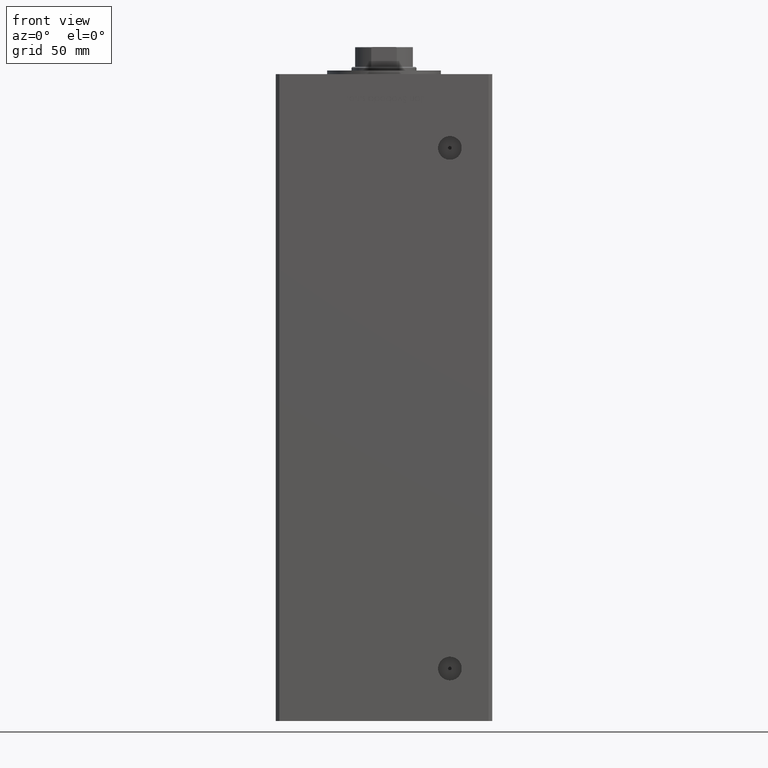
[diagram: clean part render]
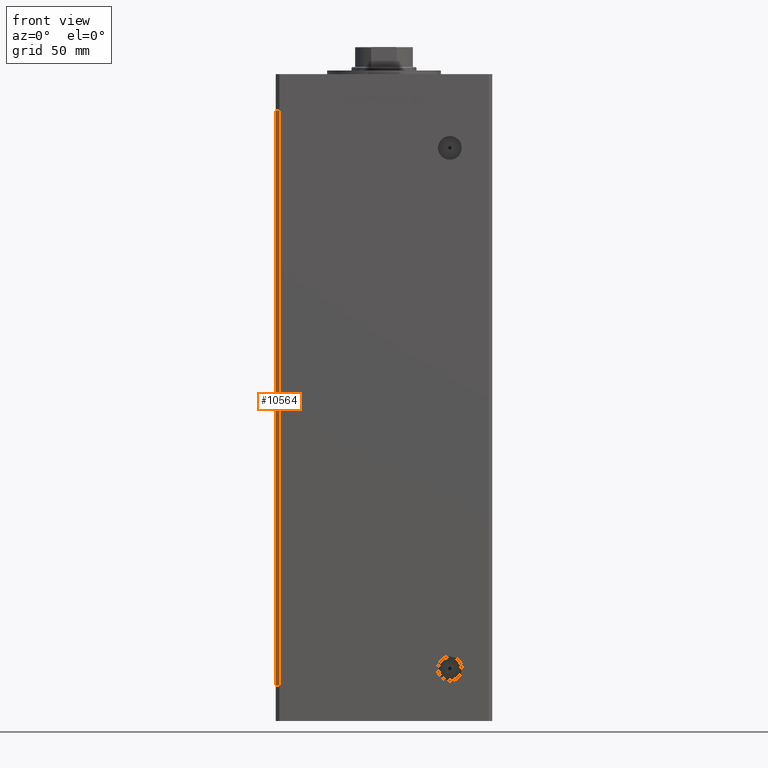
[diagram: same view with one face highlighted and labeled with its STEP entity id]
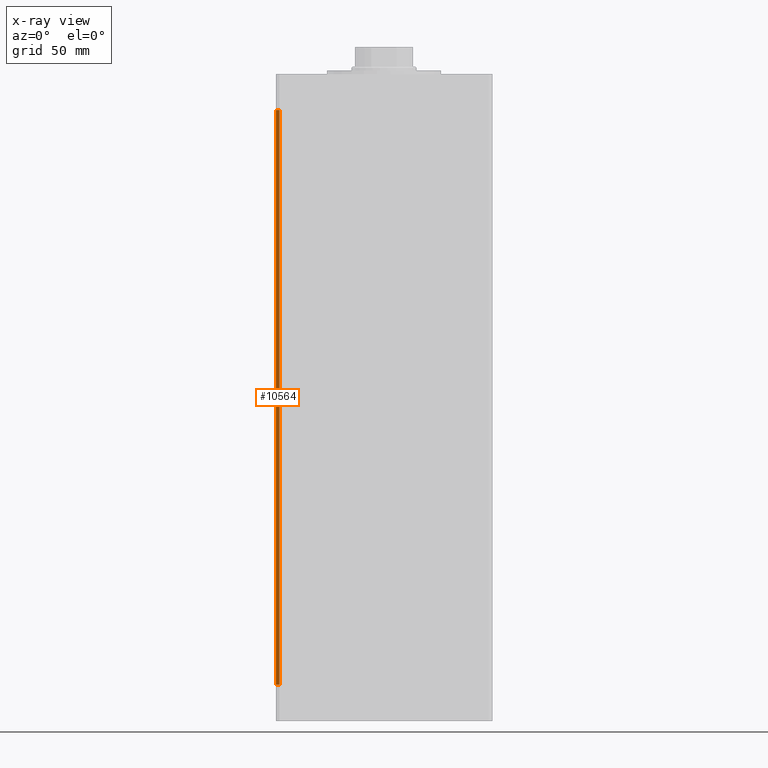
[diagram: x-ray of the same camera — body ghosted, the highlighted face saturated]
A machine part, front view. The second image highlights one B-rep face of the part: STEP entity #10564.
The next image is the same camera in x-ray: the body ghosted, the highlighted face saturated — about 0% of this face is hidden behind the body in this view.
In plain terms, the highlighted planar face has unit normal (0.7071, 0.7071, 0).
Its self-contained STEP definition (entity closure, byte-faithful):
#430 = CARTESIAN_POINT ( 'NONE',  ( -59.99999999999998579, -49.00000000000000000, 318.5000000000000000 ) ) ;
#877 = CARTESIAN_POINT ( 'NONE',  ( -59.99999999999998579, -49.00000000000000000, 318.5000000000000000 ) ) ;
#1568 = CARTESIAN_POINT ( 'NONE',  ( -59.99999999999998579, -49.00000000000000000, 0.000000000000000000 ) ) ;
#1599 = CARTESIAN_POINT ( 'NONE',  ( -57.99999999999997868, -51.00000000000000711, 318.5000000000000000 ) ) ;
#4824 = DIRECTION ( 'NONE',  ( 0.7071067811865474617, -0.7071067811865474617, 0.000000000000000000 ) ) ;
#5152 = FACE_OUTER_BOUND ( 'NONE', #7291, .T. ) ;
#5750 = ORIENTED_EDGE ( 'NONE', *, *, #20685, .F. ) ;
#6093 = VECTOR ( 'NONE', #48209, 1000.000000000000114 ) ;
#7291 = EDGE_LOOP ( 'NONE', ( #16634, #46067, #5750, #39296 ) ) ;
#7905 = CARTESIAN_POINT ( 'NONE',  ( -59.99999999999998579, -49.00000000000000000, 0.000000000000000000 ) ) ;
#9696 = LINE ( 'NONE', #26025, #22889 ) ;
#10564 = ADVANCED_FACE ( 'NONE', ( #5152 ), #25440, .F. ) ;
#11919 = VECTOR ( 'NONE', #4824, 1000.000000000000114 ) ;
#16634 = ORIENTED_EDGE ( 'NONE', *, *, #49258, .T. ) ;
#18076 = VERTEX_POINT ( 'NONE', #50866 ) ;
#18330 = DIRECTION ( 'NONE',  ( 0.7071067811865475727, 0.7071067811865475727, -0.000000000000000000 ) ) ;
#20685 = EDGE_CURVE ( 'NONE', #33854, #46967, #33547, .T. ) ;
#22889 = VECTOR ( 'NONE', #42119, 1000.000000000000000 ) ;
#25440 = PLANE ( 'NONE',  #45314 ) ;
#26025 = CARTESIAN_POINT ( 'NONE',  ( -57.99999999999997868, -51.00000000000000711, 318.5000000000000000 ) ) ;
#26607 = EDGE_CURVE ( 'NONE', #46967, #18076, #9696, .T. ) ;
#29227 = VERTEX_POINT ( 'NONE', #1568 ) ;
#29999 = LINE ( 'NONE', #45558, #44680 ) ;
#32129 = LINE ( 'NONE', #7905, #6093 ) ;
#33351 = CARTESIAN_POINT ( 'NONE',  ( -59.99999999999998579, -49.00000000000000000, 318.5000000000000000 ) ) ;
#33547 = LINE ( 'NONE', #877, #11919 ) ;
#33854 = VERTEX_POINT ( 'NONE', #430 ) ;
#37833 = DIRECTION ( 'NONE',  ( -0.7071067811865474617, 0.7071067811865474617, 0.000000000000000000 ) ) ;
#39296 = ORIENTED_EDGE ( 'NONE', *, *, #44616, .T. ) ;
#42119 = DIRECTION ( 'NONE',  ( -0.000000000000000000, -0.000000000000000000, -1.000000000000000000 ) ) ;
#44616 = EDGE_CURVE ( 'NONE', #33854, #29227, #29999, .T. ) ;
#44680 = VECTOR ( 'NONE', #46071, 1000.000000000000000 ) ;
#45314 = AXIS2_PLACEMENT_3D ( 'NONE', #33351, #18330, #37833 ) ;
#45558 = CARTESIAN_POINT ( 'NONE',  ( -59.99999999999998579, -49.00000000000000000, 318.5000000000000000 ) ) ;
#46067 = ORIENTED_EDGE ( 'NONE', *, *, #26607, .F. ) ;
#46071 = DIRECTION ( 'NONE',  ( -0.000000000000000000, -0.000000000000000000, -1.000000000000000000 ) ) ;
#46967 = VERTEX_POINT ( 'NONE', #1599 ) ;
#48209 = DIRECTION ( 'NONE',  ( 0.7071067811865474617, -0.7071067811865474617, 0.000000000000000000 ) ) ;
#49258 = EDGE_CURVE ( 'NONE', #29227, #18076, #32129, .T. ) ;
#50866 = CARTESIAN_POINT ( 'NONE',  ( -57.99999999999997868, -51.00000000000000711, 0.000000000000000000 ) ) ;